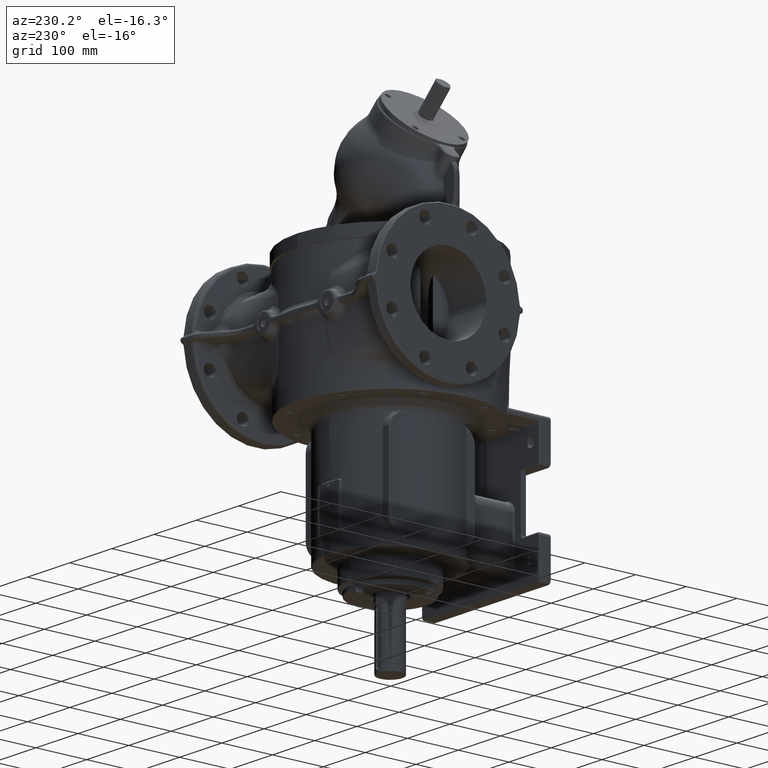
[diagram: clean part render]
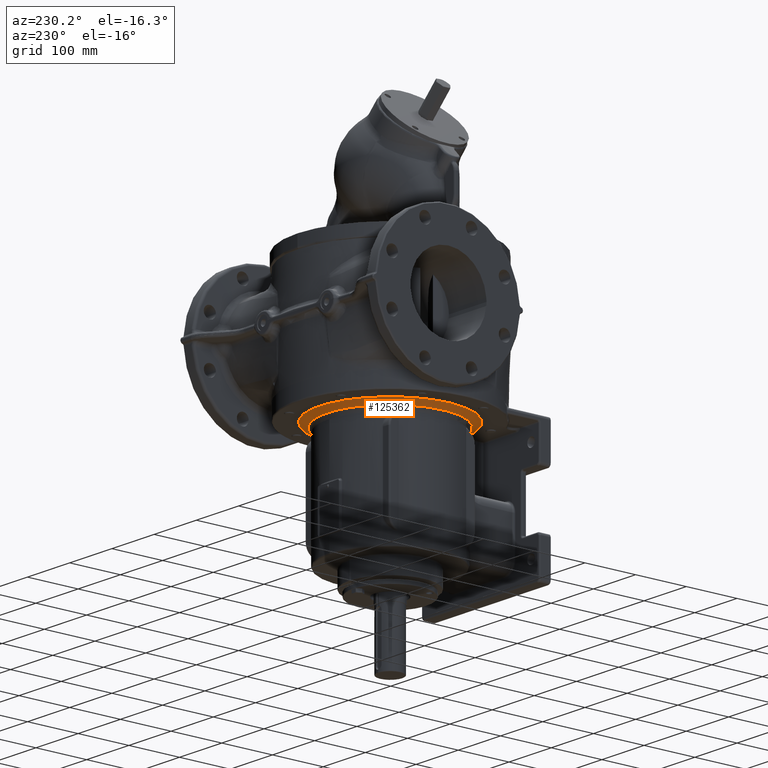
[diagram: same view with one face highlighted and labeled with its STEP entity id]
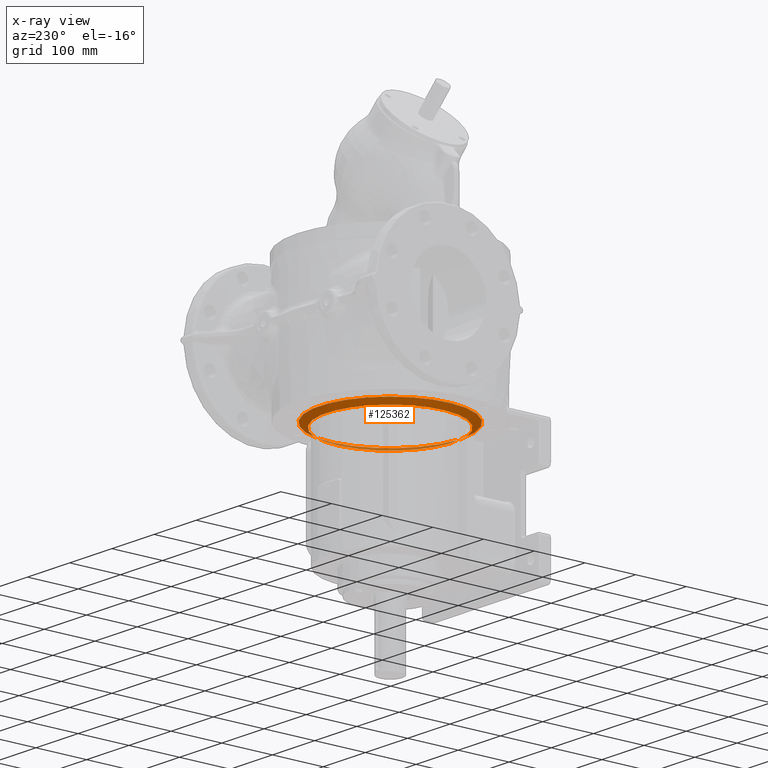
[diagram: x-ray of the same camera — body ghosted, the highlighted face saturated]
A machine part, auxiliary view. The second image highlights one B-rep face of the part: STEP entity #125362.
The next image is the same camera in x-ray: the body ghosted, the highlighted face saturated — about 15% of this face is hidden behind the body in this view.
In plain terms, the highlighted conical surface has half-angle 60 deg.
Its self-contained STEP definition (entity closure, byte-faithful):
#41489=CARTESIAN_POINT('',(7.905138339962E0,-1.237497847212E2,
-2.966025403897E1));
#41490=CARTESIAN_POINT('',(7.906239667564E0,-1.252213038878E2,
-2.881233246732E1));
#41491=CARTESIAN_POINT('',(7.908425131389E0,-1.282443254231E2,
-2.707028613876E1));
#41492=CARTESIAN_POINT('',(7.911620023014E0,-1.329856366833E2,
-2.433771014590E1));
#41493=CARTESIAN_POINT('',(7.913730746774E0,-1.363507391972E2,
-2.239805452963E1));
#41494=CARTESIAN_POINT('',(7.914775056176E0,-1.380788204064E2,
-2.140192378865E1));
#41496=CARTESIAN_POINT('',(0.E0,1.E0,-2.140192378865E1));
#41497=DIRECTION('',(0.E0,0.E0,1.E0));
#41498=DIRECTION('',(5.681662921610E-2,-9.983846306131E-1,0.E0));
#41499=AXIS2_PLACEMENT_3D('',#41496,#41497,#41498);
#41501=CARTESIAN_POINT('',(-7.914775056176E0,-1.380788204064E2,
-2.140192378865E1));
#41502=CARTESIAN_POINT('',(-7.913730736871E0,-1.363507228104E2,
-2.239806397560E1));
#41503=CARTESIAN_POINT('',(-7.911619998436E0,-1.329855984584E2,
-2.433773217791E1));
#41504=CARTESIAN_POINT('',(-7.908425105011E0,-1.282442879772E2,
-2.707030771838E1));
#41505=CARTESIAN_POINT('',(-7.906239655557E0,-1.252212878443E2,
-2.881234171189E1));
#41506=CARTESIAN_POINT('',(-7.905138339962E0,-1.237497847212E2,
-2.966025403897E1));
#41550=CARTESIAN_POINT('',(0.E0,1.E0,-2.966025403784E1));
#41551=DIRECTION('',(0.E0,0.E0,1.E0));
#41552=DIRECTION('',(6.324110671937E-2,-9.979982777645E-1,0.E0));
#41553=AXIS2_PLACEMENT_3D('',#41550,#41551,#41552);
#41555=CARTESIAN_POINT('',(-7.905138339962E0,-1.237497847212E2,
-2.966025403897E1));
#65960=VERTEX_POINT('',#41489);
#65961=VERTEX_POINT('',#41494);
#65965=VERTEX_POINT('',#41555);
#65969=VERTEX_POINT('',#41501);
#125349=CARTESIAN_POINT('',(0.E0,1.E0,-2.553108891325E1));
#125350=DIRECTION('',(0.E0,0.E0,1.E0));
#125351=DIRECTION('',(0.E0,-1.E0,0.E0));
#125352=AXIS2_PLACEMENT_3D('',#125349,#125350,#125351);
#125353=CONICAL_SURFACE('',#125352,1.321519237886E2,6.E1);
#125355=ORIENTED_EDGE('',*,*,#125354,.T.);
#125356=ORIENTED_EDGE('',*,*,#125288,.T.);
#125357=ORIENTED_EDGE('',*,*,#125339,.T.);
#125359=ORIENTED_EDGE('',*,*,#125358,.F.);
#125360=EDGE_LOOP('',(#125355,#125356,#125357,#125359));
#125361=FACE_OUTER_BOUND('',#125360,.F.);
#125362=ADVANCED_FACE('',(#125361),#125353,.T.);
#41495=B_SPLINE_CURVE_WITH_KNOTS('',3,(#41489,#41490,#41491,#41492,#41493,
#41494),.UNSPECIFIED.,.F.,.F.,(4,1,1,4),(0.E0,3.333333333333E-1,
6.666666666667E-1,1.E0),.UNSPECIFIED.);
#41500=CIRCLE('',#41499,1.393038475773E2);
#41507=B_SPLINE_CURVE_WITH_KNOTS('',3,(#41501,#41502,#41503,#41504,#41505,
#41506),.UNSPECIFIED.,.F.,.F.,(4,1,1,4),(0.E0,3.333333333333E-1,
6.666666666667E-1,1.E0),.UNSPECIFIED.);
#41554=CIRCLE('',#41553,1.25E2);
#125288=EDGE_CURVE('',#65961,#65969,#41500,.T.);
#125339=EDGE_CURVE('',#65969,#65965,#41507,.T.);
#125354=EDGE_CURVE('',#65960,#65961,#41495,.T.);
#125358=EDGE_CURVE('',#65960,#65965,#41554,.T.);